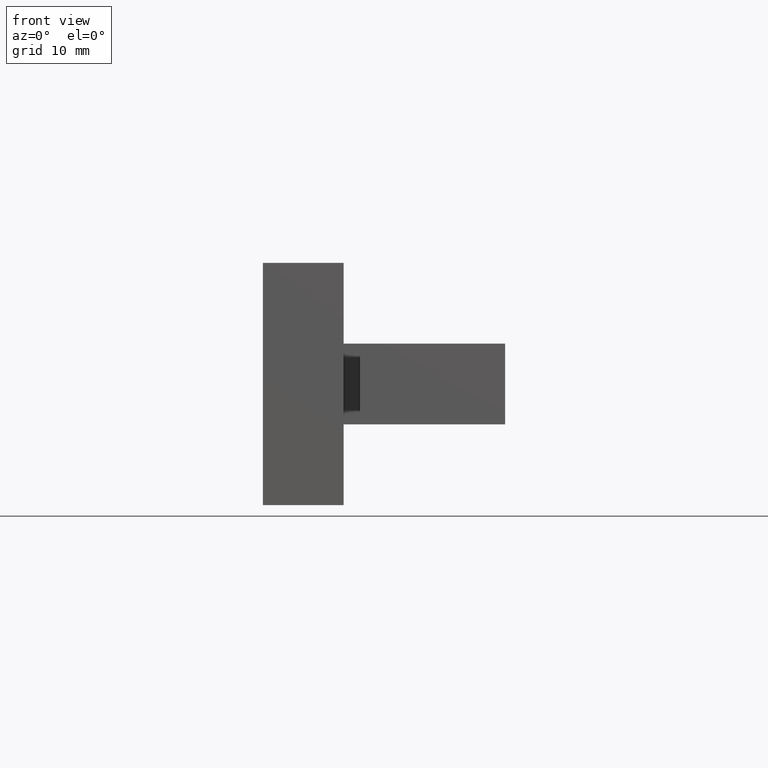
[diagram: clean part render]
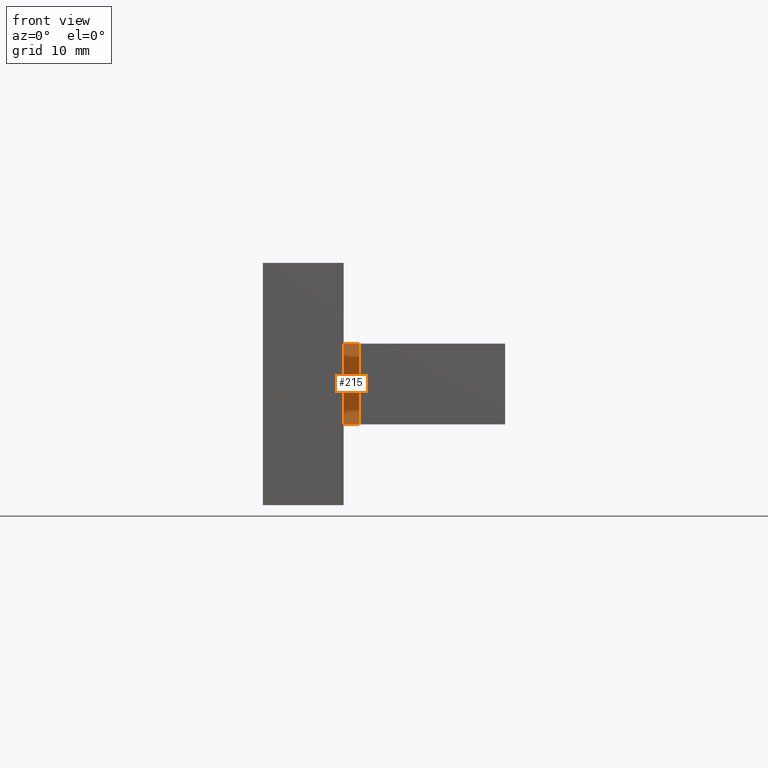
[diagram: same view with one face highlighted and labeled with its STEP entity id]
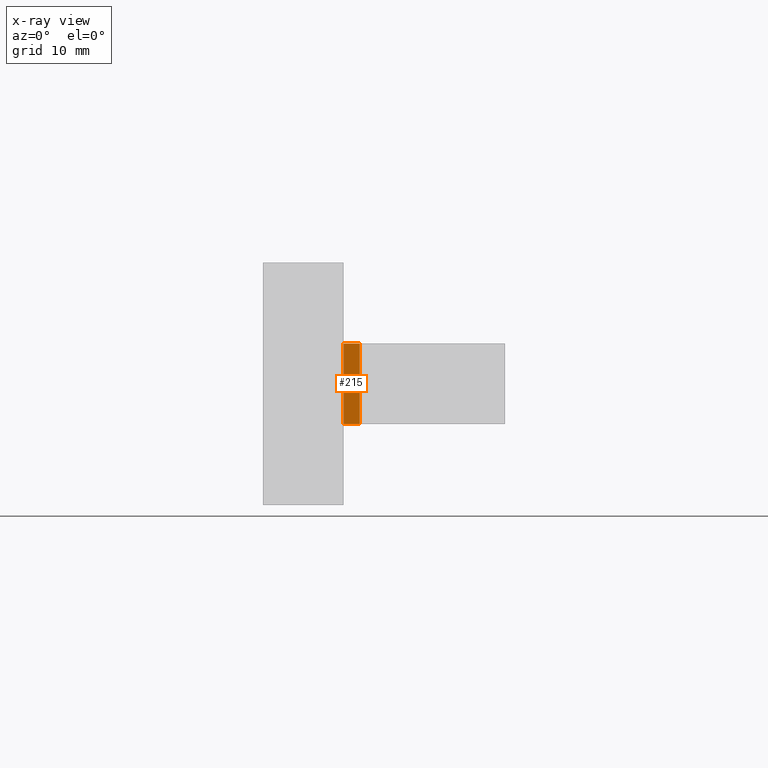
[diagram: x-ray of the same camera — body ghosted, the highlighted face saturated]
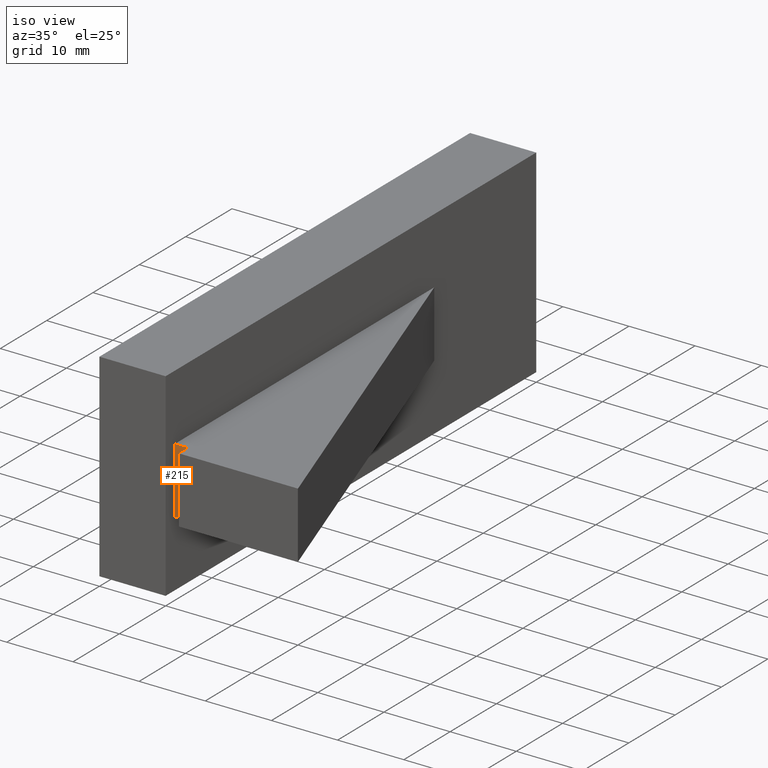
[diagram: same view with one face highlighted and labeled with its STEP entity id]
A machine part, front view. The second image highlights one B-rep face of the part: STEP entity #215.
The next image is the same camera in x-ray: the body ghosted, the highlighted face saturated — about 0% of this face is hidden behind the body in this view.
A second angle (iso view) of the same face is appended — the face is thin or edge-on in the first view.
In plain terms, the highlighted planar face has unit normal (0, -1, 0).
Its self-contained STEP definition (entity closure, byte-faithful):
#25=FACE_OUTER_BOUND('',#38,.T.);
#38=EDGE_LOOP('',(#178,#179,#180,#181));
#47=LINE('',#321,#74);
#61=LINE('',#349,#88);
#63=LINE('',#354,#90);
#65=LINE('',#357,#92);
#74=VECTOR('',#263,10.);
#88=VECTOR('',#289,10.);
#90=VECTOR('',#293,10.);
#92=VECTOR('',#297,10.);
#101=VERTEX_POINT('',#318);
#102=VERTEX_POINT('',#320);
#110=VERTEX_POINT('',#347);
#112=VERTEX_POINT('',#352);
#119=EDGE_CURVE('',#102,#101,#47,.T.);
#133=EDGE_CURVE('',#101,#110,#61,.T.);
#135=EDGE_CURVE('',#112,#110,#63,.T.);
#137=EDGE_CURVE('',#112,#102,#65,.T.);
#178=ORIENTED_EDGE('',*,*,#137,.T.);
#179=ORIENTED_EDGE('',*,*,#119,.T.);
#180=ORIENTED_EDGE('',*,*,#133,.T.);
#181=ORIENTED_EDGE('',*,*,#135,.F.);
#203=PLANE('',#250);
#215=ADVANCED_FACE('',(#25),#203,.T.);
#250=AXIS2_PLACEMENT_3D('',#356,#295,#296);
#263=DIRECTION('',(0.,0.,-1.));
#289=DIRECTION('',(1.,2.77555756156289E-16,0.));
#293=DIRECTION('',(0.,0.,-1.));
#295=DIRECTION('center_axis',(2.77555756156289E-16,-1.,0.));
#296=DIRECTION('ref_axis',(0.,0.,-1.));
#297=DIRECTION('',(-1.,-2.77555756156289E-16,0.));
#318=CARTESIAN_POINT('',(-20.,2.,-5.));
#320=CARTESIAN_POINT('',(-20.,2.,5.));
#321=CARTESIAN_POINT('',(-20.,2.,0.));
#347=CARTESIAN_POINT('',(-18.,2.,-5.));
#349=CARTESIAN_POINT('',(-18.,2.,-5.));
#352=CARTESIAN_POINT('',(-18.,2.,5.));
#354=CARTESIAN_POINT('',(-18.,2.,0.));
#356=CARTESIAN_POINT('Origin',(-18.,2.,0.));
#357=CARTESIAN_POINT('',(-18.,2.,5.));